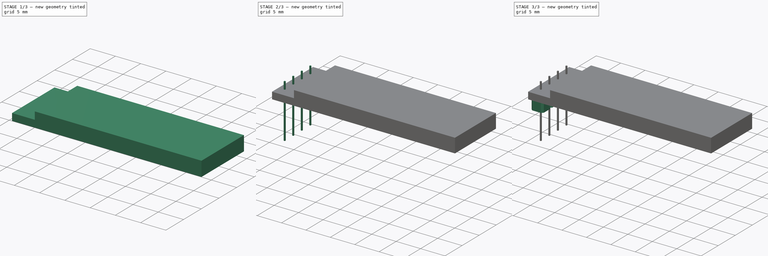
[diagram: build sequence overview — one tinted view per stage of 3, left to right]
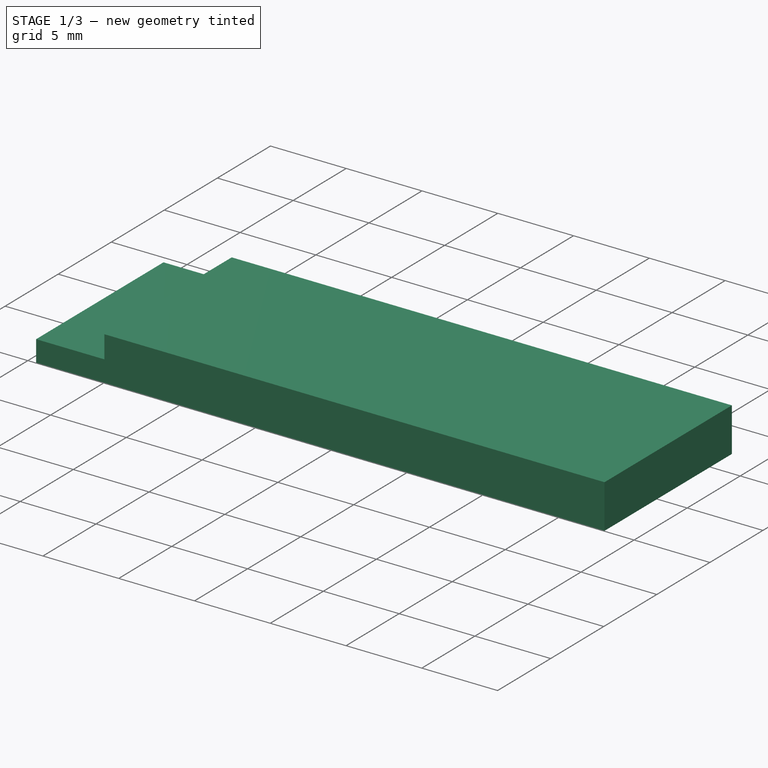
[diagram: stage 1 of 3 — iso view after this stage's code; geometry added in this stage tinted green]
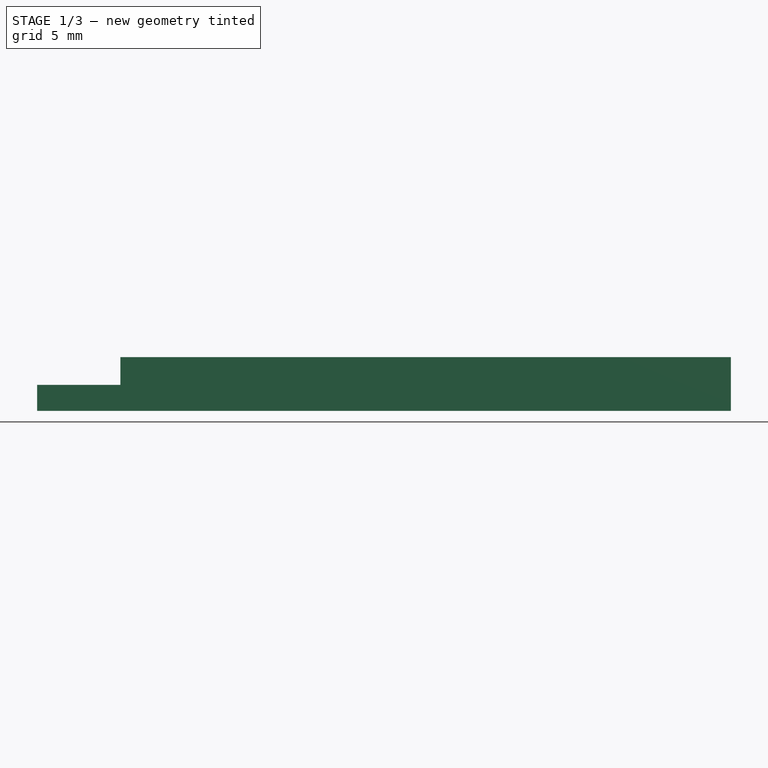
[diagram: stage 1 of 3 — front view after this stage's code; geometry added in this stage tinted green]
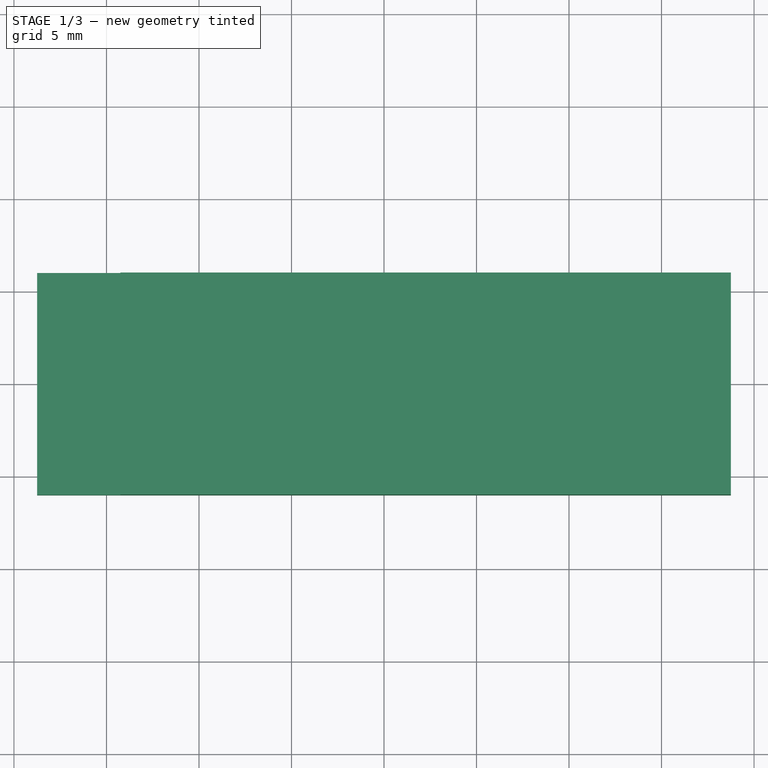
[diagram: stage 1 of 3 — top view after this stage's code; geometry added in this stage tinted green]
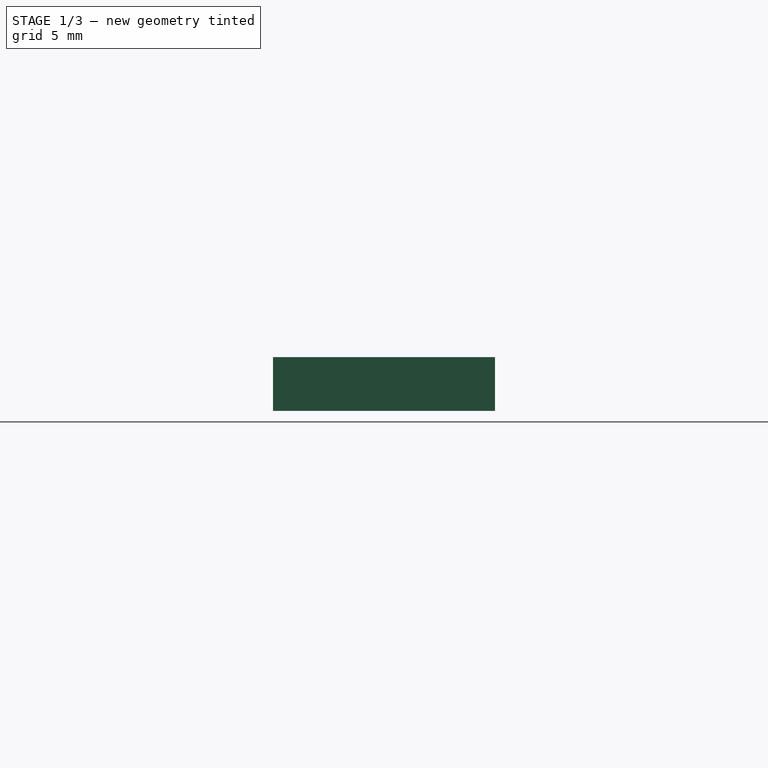
[diagram: stage 1 of 3 — right view after this stage's code; geometry added in this stage tinted green]
FCSTD DOCUMENT  (FreeCAD 0.19R)
Label: OLED_128x32
License: All rights reserved
LicenseURL: http://en.wikipedia.org/wiki/All_rights_reserved
objects: Sketcher::SketchObject×4, PartDesign::Pad×4, PartDesign::LinearPattern×2, PartDesign::Body×1
note: 15 computed .brp shape members not serialized (recipe doc carries the construction recipe); baked Part::Feature solids carry a one-line shape summary decoded from their .brp

FEATURE [Sketcher::SketchObject] Sketch
  FullyConstrained = true
  MapMode = 5
  Support = -> [XY_Plane]
  sketch-geometry (4):
    g0: LineSegment StartX=-18.75 StartY=6 StartZ=0 EndX=18.75 EndY=6 EndZ=0
    g1: LineSegment StartX=18.75 StartY=6 StartZ=0 EndX=18.75 EndY=-6 EndZ=0
    g2: LineSegment StartX=18.75 StartY=-6 StartZ=0 EndX=-18.75 EndY=-6 EndZ=0
    g3: LineSegment StartX=-18.75 StartY=-6 StartZ=0 EndX=-18.75 EndY=6 EndZ=0
  constraints (11):
    c: Coincident(g0,g1)
    c: Coincident(g1,g2)
    c: Coincident(g2,g3)
    c: Coincident(g3,g0)
    c: Horizontal(g0)
    c: Horizontal(g2)
    c: Vertical(g1)
    c: Vertical(g3)
    c: Symmetric(g0,g1,g-1)
    c: DistanceX(g2,g2) = 37.5
    c: DistanceY(g3,g3) = 12
FEATURE [PartDesign::Pad] Pad
  Direction = (1,1,1)
  Length = 1.4
  Length2 = 100
  Profile = -> Sketch
  Type = 0
FEATURE [Sketcher::SketchObject] Sketch001
  ExternalGeometry = -> [Pad]
  FullyConstrained = true
  MapMode = 5
  Placement = pos=(0,0,1.4) rot=(0,0,1;0rad)
  Support = -> [Pad]
  sketch-geometry (4):
    g0: LineSegment StartX=-14.25 StartY=-6 StartZ=0 EndX=18.75 EndY=-6 EndZ=0
    g1: LineSegment StartX=18.75 StartY=-6 StartZ=0 EndX=18.75 EndY=6 EndZ=0
    g2: LineSegment StartX=18.75 StartY=6 StartZ=0 EndX=-14.25 EndY=6 EndZ=0
    g3: LineSegment StartX=-14.25 StartY=6 StartZ=0 EndX=-14.25 EndY=-6 EndZ=0
  constraints (11):
    c: Coincident(g0,g1)
    c: Coincident(g1,g2)
    c: Coincident(g2,g3)
    c: Coincident(g3,g0)
    c: Horizontal(g0)
    c: Horizontal(g2)
    c: Vertical(g1)
    c: Vertical(g3)
    c: Coincident(g1,g-3)
    c: PointOnObject(g0,g-4)
    c: DistanceX(g2,g2) = 33
FEATURE [PartDesign::Pad] Pad001
  BaseFeature = -> Pad
  Direction = (1,1,1)
  Length = 1.5
  Length2 = 100
  Profile = -> Sketch001
  Type = 0
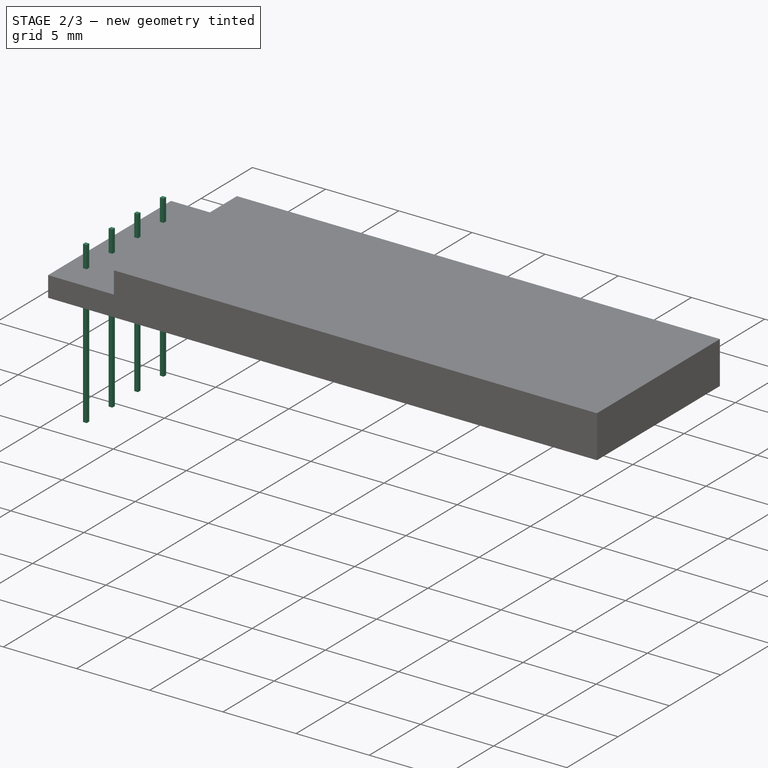
[diagram: stage 2 of 3 — iso view after this stage's code; geometry added in this stage tinted green]
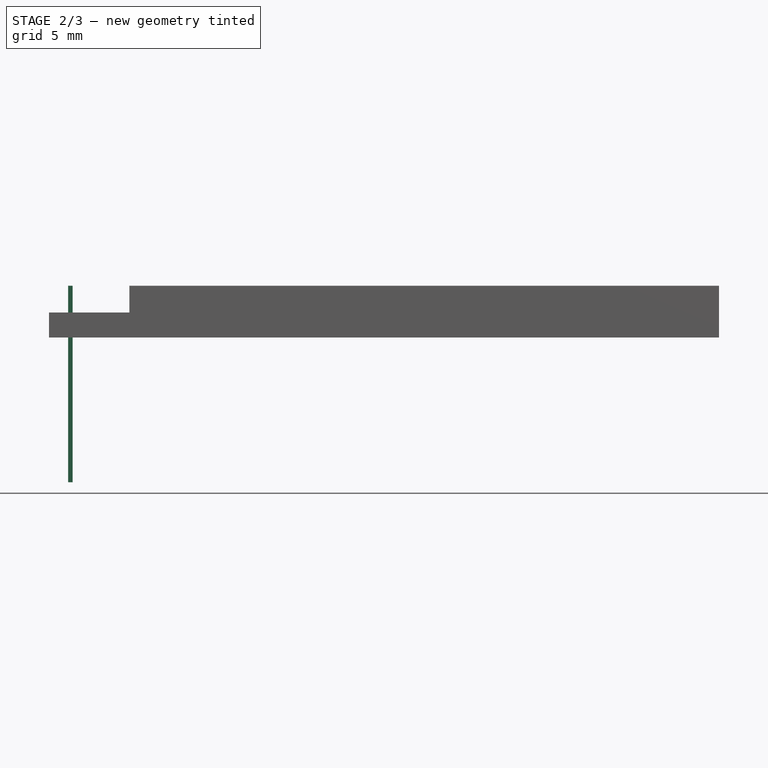
[diagram: stage 2 of 3 — front view after this stage's code; geometry added in this stage tinted green]
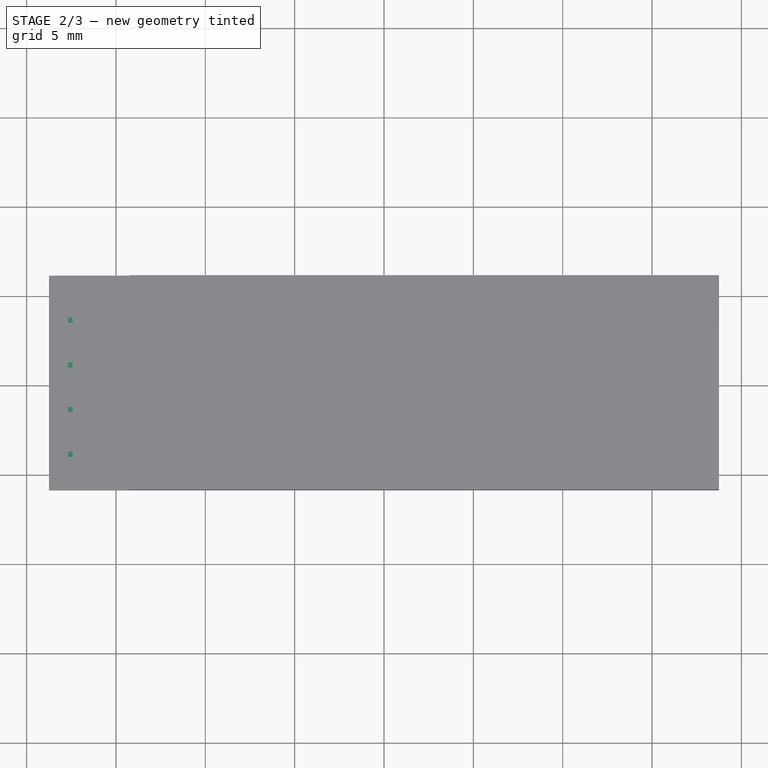
[diagram: stage 2 of 3 — top view after this stage's code; geometry added in this stage tinted green]
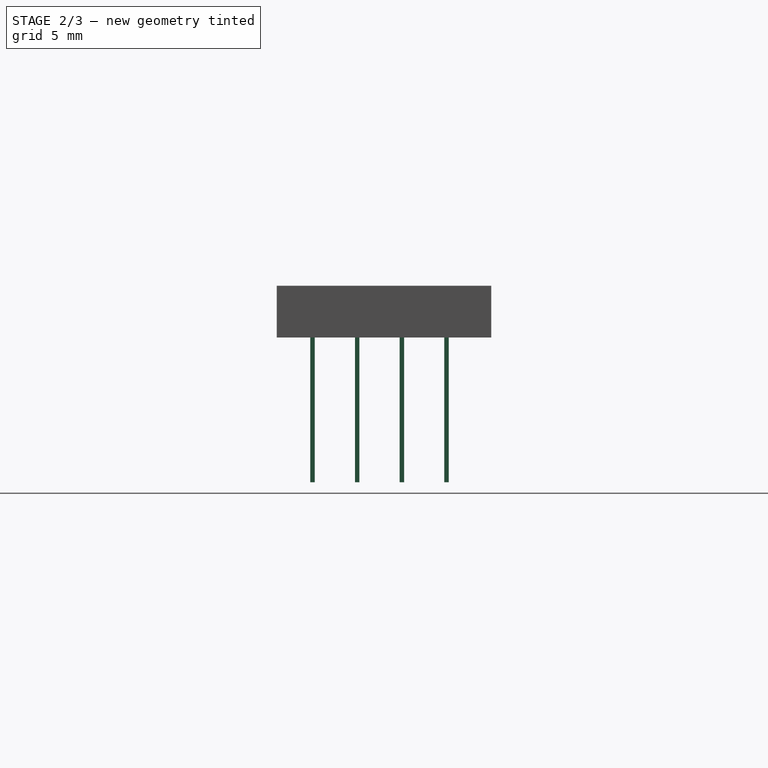
[diagram: stage 2 of 3 — right view after this stage's code; geometry added in this stage tinted green]
FEATURE [Sketcher::SketchObject] Sketch002
  ExternalGeometry = -> [Pad001]
  FullyConstrained = true
  MapMode = 5
  Placement = pos=(0,0,1.4) rot=(0,0,1;0rad)
  Support = -> [Pad001]
  sketch-geometry (5):
    g0: LineSegment StartX=-17.425 StartY=-3.875 StartZ=0 EndX=-17.675 EndY=-3.875 EndZ=0
    g1: LineSegment StartX=-17.675 StartY=-3.875 StartZ=0 EndX=-17.675 EndY=-4.125 EndZ=0
    g2: LineSegment StartX=-17.675 StartY=-4.125 StartZ=0 EndX=-17.425 EndY=-4.125 EndZ=0
    g3: LineSegment StartX=-17.425 StartY=-4.125 StartZ=0 EndX=-17.425 EndY=-3.875 EndZ=0
    g4: LineSegment StartX=-17.425 StartY=-4.125 StartZ=0 EndX=-17.55 EndY=-4 EndZ=0
  constraints (14):
    c: Coincident(g0,g1)
    c: Coincident(g1,g2)
    c: Coincident(g2,g3)
    c: Coincident(g3,g0)
    c: Horizontal(g0)
    c: Horizontal(g2)
    c: Vertical(g1)
    c: Vertical(g3)
    c: DistanceY(g3,g3) = 0.25
    c: Equal(g3,g0)
    c: Coincident(g4,g2)
    c: Symmetric(g0,g1,g4)
    c: DistanceY(g-4,g4) = 2
    c: DistanceX(g-4,g4) = 1.2
FEATURE [PartDesign::Pad] Pad002
  BaseFeature = -> Pad001
  Direction = (1,1,1)
  Length = 1.5
  Length2 = 9.5
  Profile = -> Sketch002
  Type = 4
FEATURE [PartDesign::LinearPattern] LinearPattern
  BaseFeature = -> Pad002
  Direction = -> Sketch002 [V_Axis]
  Length = 7.5
  Occurrences = 4
  Originals = -> [Pad002]
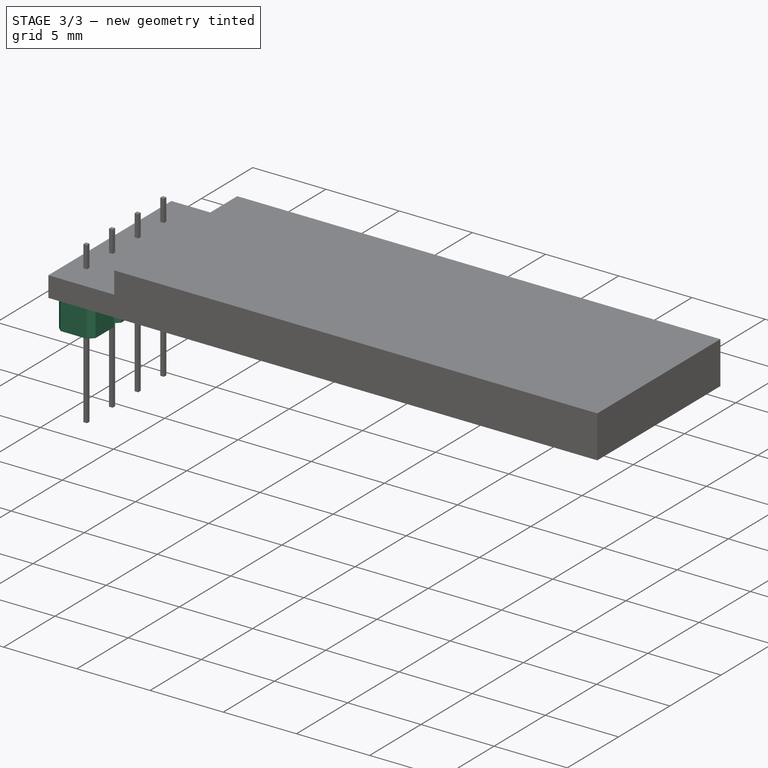
[diagram: stage 3 of 3 — iso view after this stage's code; geometry added in this stage tinted green]
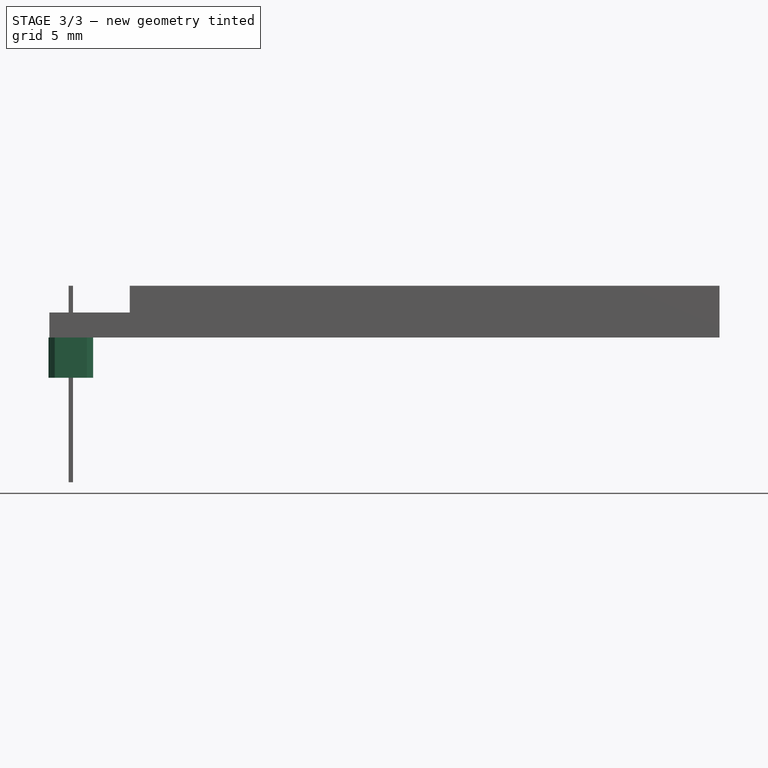
[diagram: stage 3 of 3 — front view after this stage's code; geometry added in this stage tinted green]
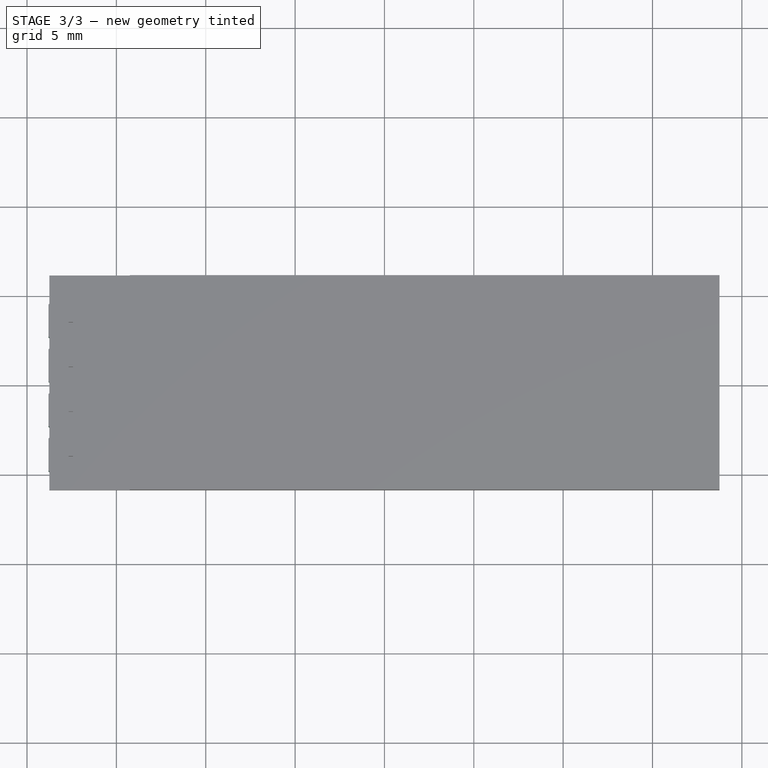
[diagram: stage 3 of 3 — top view after this stage's code; geometry added in this stage tinted green]
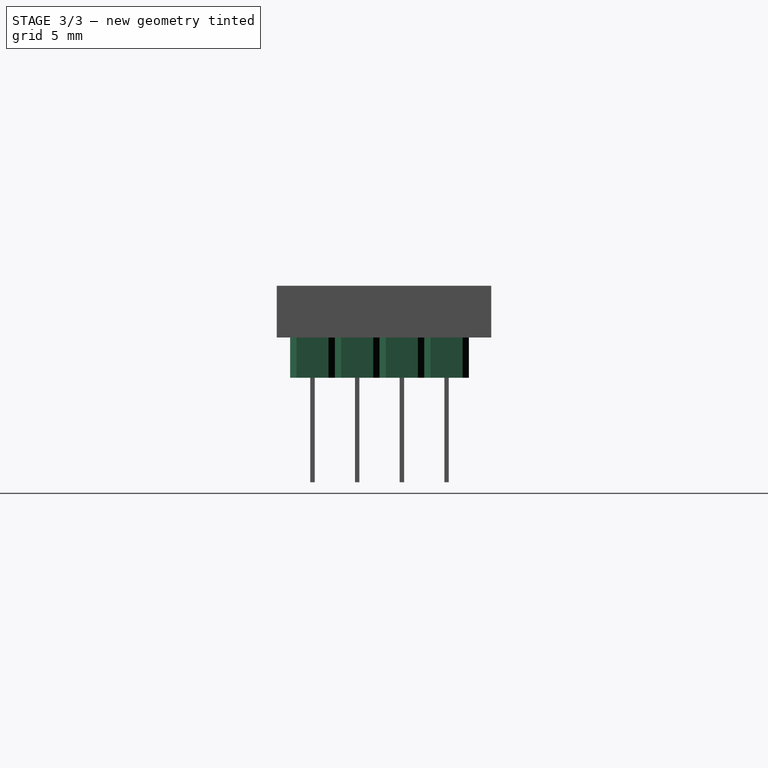
[diagram: stage 3 of 3 — right view after this stage's code; geometry added in this stage tinted green]
FEATURE [Sketcher::SketchObject] Sketch003
  ExternalGeometry = -> [LinearPattern]
  FullyConstrained = true
  MapMode = 5
  Placement = pos=(0,0,0) rot=(1,0,0;3.14159rad)
  Support = -> [LinearPattern]
  sketch-geometry (9):
    g0: LineSegment StartX=-17.675 StartY=3.875 StartZ=0 EndX=-17.55 EndY=4 EndZ=0
    g1: LineSegment StartX=-18.8 StartY=4.89645 StartZ=0 EndX=-18.4464 EndY=5.25 EndZ=0
    g2: LineSegment StartX=-16.6536 StartY=5.25 StartZ=0 EndX=-16.3 EndY=4.89645 EndZ=0
    g3: LineSegment StartX=-16.3 StartY=3.10355 StartZ=0 EndX=-16.6536 EndY=2.75 EndZ=0
    g4: LineSegment StartX=-18.4464 StartY=2.75 StartZ=0 EndX=-18.8 EndY=3.10355 EndZ=0
    g5: LineSegment StartX=-18.4464 StartY=5.25 StartZ=0 EndX=-16.6536 EndY=5.25 EndZ=0
    g6: LineSegment StartX=-16.3 StartY=4.89645 StartZ=0 EndX=-16.3 EndY=3.10355 EndZ=0
    g7: LineSegment StartX=-16.6536 StartY=2.75 StartZ=0 EndX=-18.4464 EndY=2.75 EndZ=0
    g8: LineSegment StartX=-18.8 StartY=3.10355 StartZ=0 EndX=-18.8 EndY=4.89645 EndZ=0
  constraints (25):
    c: Coincident(g0,g-4)
    c: Symmetric(g-3,g-4,g0)
    c: Equal(g1,g2)
    c: Equal(g2,g3)
    c: Equal(g3,g4)
    c: Perpendicular(g2,g1)
    c: Perpendicular(g3,g2)
    c: Perpendicular(g4,g3)
    c: Distance(g1) = 0.5
    c: Coincident(g5,g1)
    c: Coincident(g5,g2)
    c: Horizontal(g5)
    c: Coincident(g6,g2)
    c: Coincident(g6,g3)
    c: Vertical(g6)
    c: Coincident(g7,g3)
    c: Coincident(g7,g4)
    c: Horizontal(g7)
    c: Coincident(g8,g4)
    c: Coincident(g8,g1)
    c: Vertical(g8)
    c: Equal(g8,g5)
    c: Angle(g1,g5) = 2.35619
    c: Symmetric(g1,g3,g0)
    c: DistanceY(g4,g1) = 2.5
FEATURE [PartDesign::Pad] Pad003
  BaseFeature = -> LinearPattern
  Direction = (1,1,1)
  Length = 2.25
  Length2 = 100
  Profile = -> Sketch003
  Type = 0
FEATURE [PartDesign::LinearPattern] LinearPattern001
  BaseFeature = -> Pad003
  Direction = -> Sketch003 [V_Axis]
  Length = 7.5
  Occurrences = 4
  Originals = -> [Pad003]
  Reversed = true
FEATURE [PartDesign::Body] Body
  Group = -> [Sketch,Pad,Sketch001,Pad001,Sketch002,Pad002,LinearPattern,Sketch003,Pad003,LinearPattern001]
  Origin = -> Origin
  Tip = -> LinearPattern001
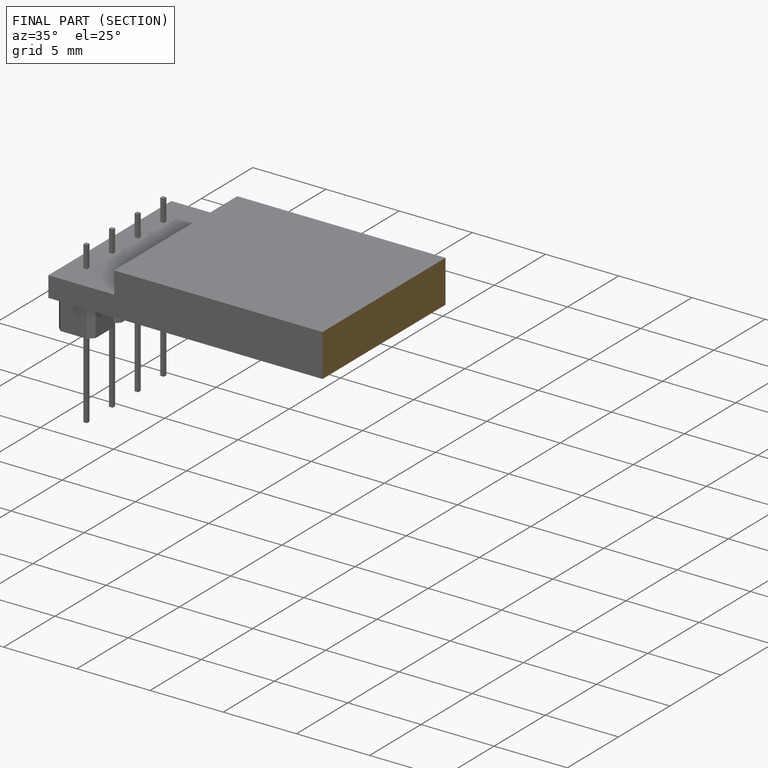
[diagram: finished part — half-section view (interior)]
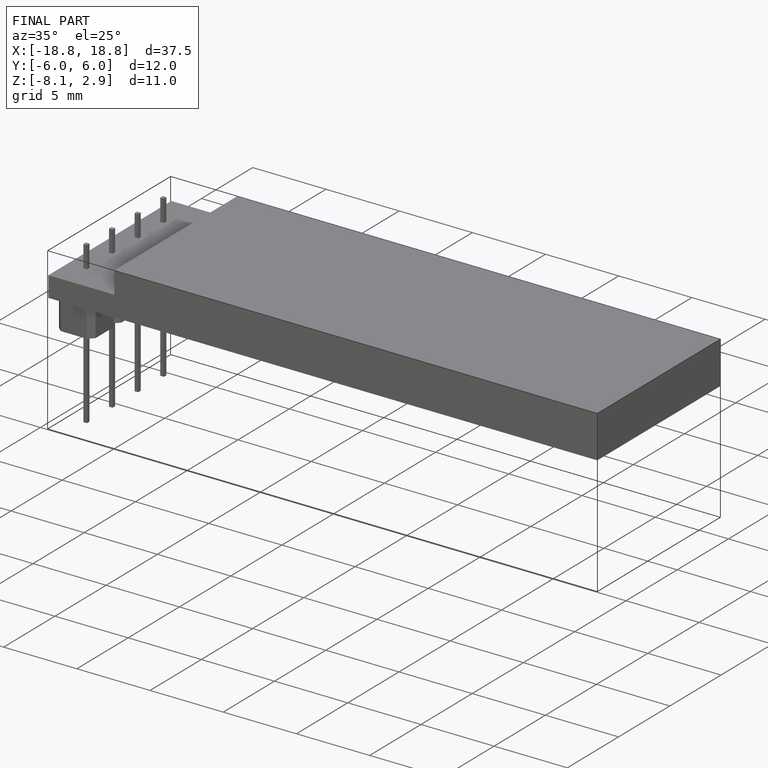
[diagram: finished part — iso view with bounding-box wireframe]
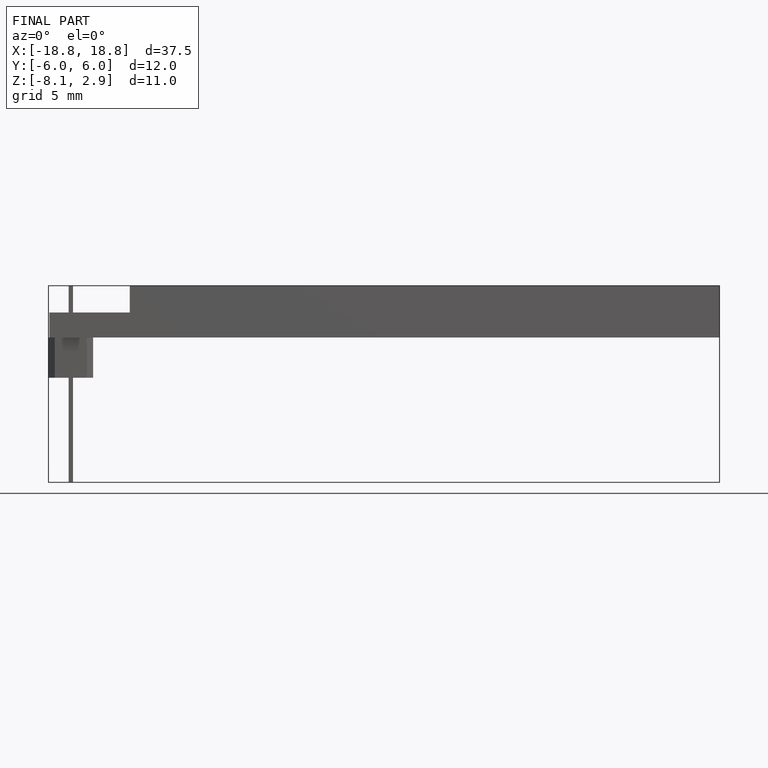
[diagram: finished part — front view with bounding-box wireframe]
